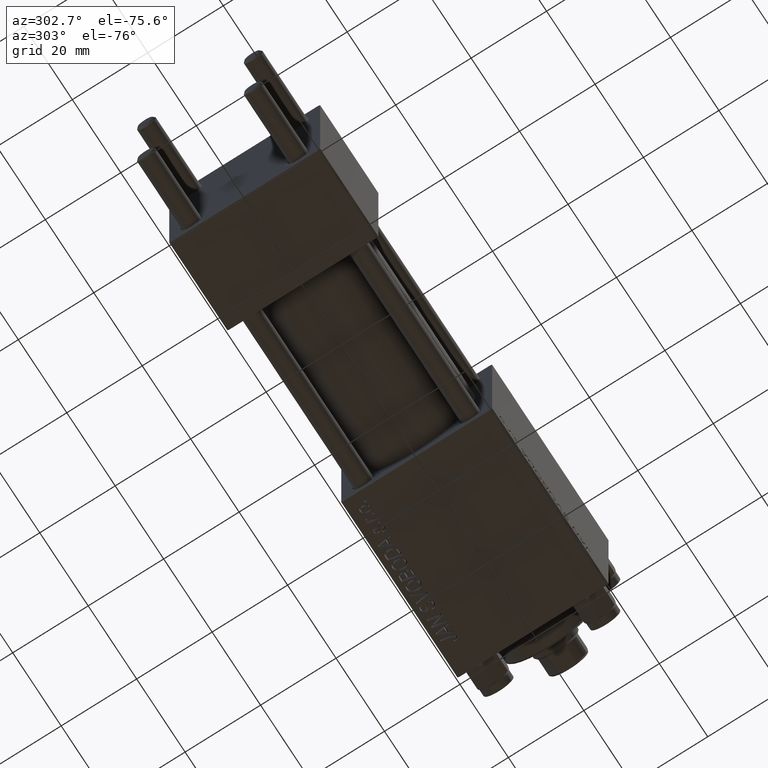
[diagram: clean part render]
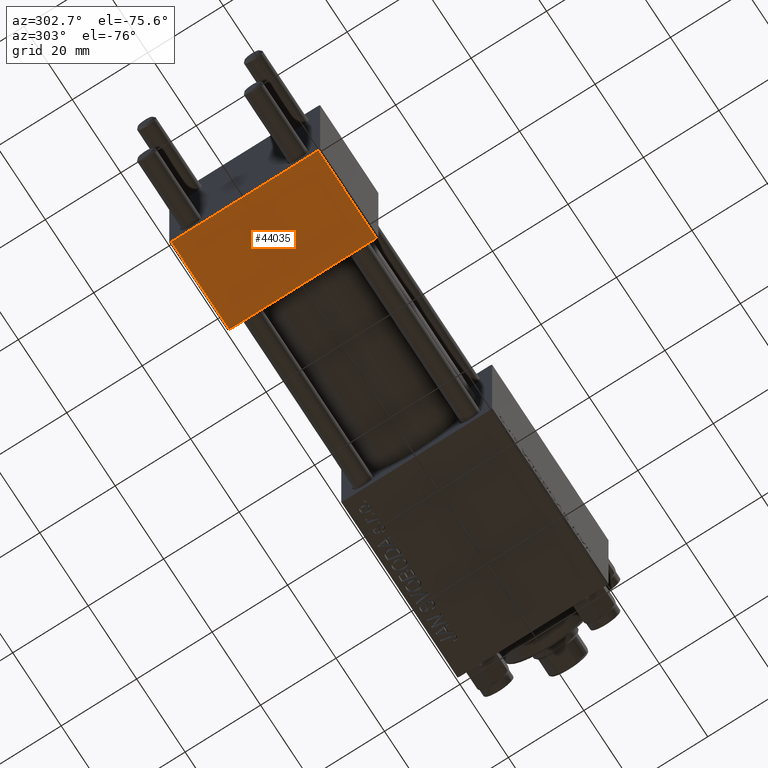
[diagram: same view with one face highlighted and labeled with its STEP entity id]
A machine part, auxiliary view. The second image highlights one B-rep face of the part: STEP entity #44035.
In plain terms, the highlighted planar face has unit normal (0, -0, -1).
Its self-contained STEP definition (entity closure, byte-faithful):
#1247 = CARTESIAN_POINT ( 'NONE',  ( 0.000000000000000000, 20.00000000000000000, -20.00000000000000711 ) ) ;
#1292 = VECTOR ( 'NONE', #15496, 1000.000000000000000 ) ;
#1482 = FACE_OUTER_BOUND ( 'NONE', #2870, .T. ) ;
#2632 = ORIENTED_EDGE ( 'NONE', *, *, #13372, .T. ) ;
#2870 = EDGE_LOOP ( 'NONE', ( #34849, #23435, #44959, #2632 ) ) ;
#5406 = VERTEX_POINT ( 'NONE', #38436 ) ;
#6244 = CARTESIAN_POINT ( 'NONE',  ( 24.00000000000000000, 20.00000000000000000, -20.00000000000000711 ) ) ;
#7457 = CARTESIAN_POINT ( 'NONE',  ( 24.00000000000000000, -19.50000000000000711, -20.00000000000000000 ) ) ;
#9256 = DIRECTION ( 'NONE',  ( 0.000000000000000000, 1.000000000000000000, -1.734723475976806848E-16 ) ) ;
#9717 = VERTEX_POINT ( 'NONE', #7457 ) ;
#10003 = DIRECTION ( 'NONE',  ( 0.000000000000000000, -1.734723475976806848E-16, -1.000000000000000000 ) ) ;
#11662 = EDGE_CURVE ( 'NONE', #5406, #9717, #39168, .T. ) ;
#11949 = AXIS2_PLACEMENT_3D ( 'NONE', #6244, #10003, #9256 ) ;
#13372 = EDGE_CURVE ( 'NONE', #9717, #21465, #39502, .T. ) ;
#15496 = DIRECTION ( 'NONE',  ( 1.000000000000000000, 0.000000000000000000, 0.000000000000000000 ) ) ;
#16490 = CARTESIAN_POINT ( 'NONE',  ( 24.00000000000000000, 20.00000000000000000, -20.00000000000000711 ) ) ;
#19017 = CARTESIAN_POINT ( 'NONE',  ( 24.00000000000000000, 19.50000000000000711, -20.00000000000000711 ) ) ;
#21465 = VERTEX_POINT ( 'NONE', #38184 ) ;
#21871 = VECTOR ( 'NONE', #27905, 1000.000000000000000 ) ;
#23435 = ORIENTED_EDGE ( 'NONE', *, *, #27189, .T. ) ;
#23455 = VECTOR ( 'NONE', #31103, 1000.000000000000000 ) ;
#24383 = DIRECTION ( 'NONE',  ( 0.000000000000000000, -1.000000000000000000, 1.734723475976807094E-16 ) ) ;
#26782 = CARTESIAN_POINT ( 'NONE',  ( 0.000000000000000000, 19.50000000000000711, -20.00000000000000711 ) ) ;
#27029 = VECTOR ( 'NONE', #24383, 1000.000000000000000 ) ;
#27189 = EDGE_CURVE ( 'NONE', #47116, #5406, #30597, .T. ) ;
#27905 = DIRECTION ( 'NONE',  ( -1.000000000000000000, 0.000000000000000000, 0.000000000000000000 ) ) ;
#27918 = LINE ( 'NONE', #1247, #27029 ) ;
#28154 = EDGE_CURVE ( 'NONE', #47116, #21465, #27918, .T. ) ;
#30597 = LINE ( 'NONE', #19017, #1292 ) ;
#31103 = DIRECTION ( 'NONE',  ( 0.000000000000000000, -1.000000000000000000, 1.734723475976807094E-16 ) ) ;
#34849 = ORIENTED_EDGE ( 'NONE', *, *, #28154, .F. ) ;
#38184 = CARTESIAN_POINT ( 'NONE',  ( 0.000000000000000000, -19.50000000000000711, -20.00000000000000000 ) ) ;
#38436 = CARTESIAN_POINT ( 'NONE',  ( 24.00000000000000000, 19.50000000000000711, -20.00000000000000711 ) ) ;
#39168 = LINE ( 'NONE', #16490, #23455 ) ;
#39502 = LINE ( 'NONE', #47804, #21871 ) ;
#44035 = ADVANCED_FACE ( 'NONE', ( #1482 ), #47801, .T. ) ;
#44959 = ORIENTED_EDGE ( 'NONE', *, *, #11662, .T. ) ;
#47116 = VERTEX_POINT ( 'NONE', #26782 ) ;
#47801 = PLANE ( 'NONE',  #11949 ) ;
#47804 = CARTESIAN_POINT ( 'NONE',  ( 0.000000000000000000, -19.50000000000000711, -20.00000000000000000 ) ) ;